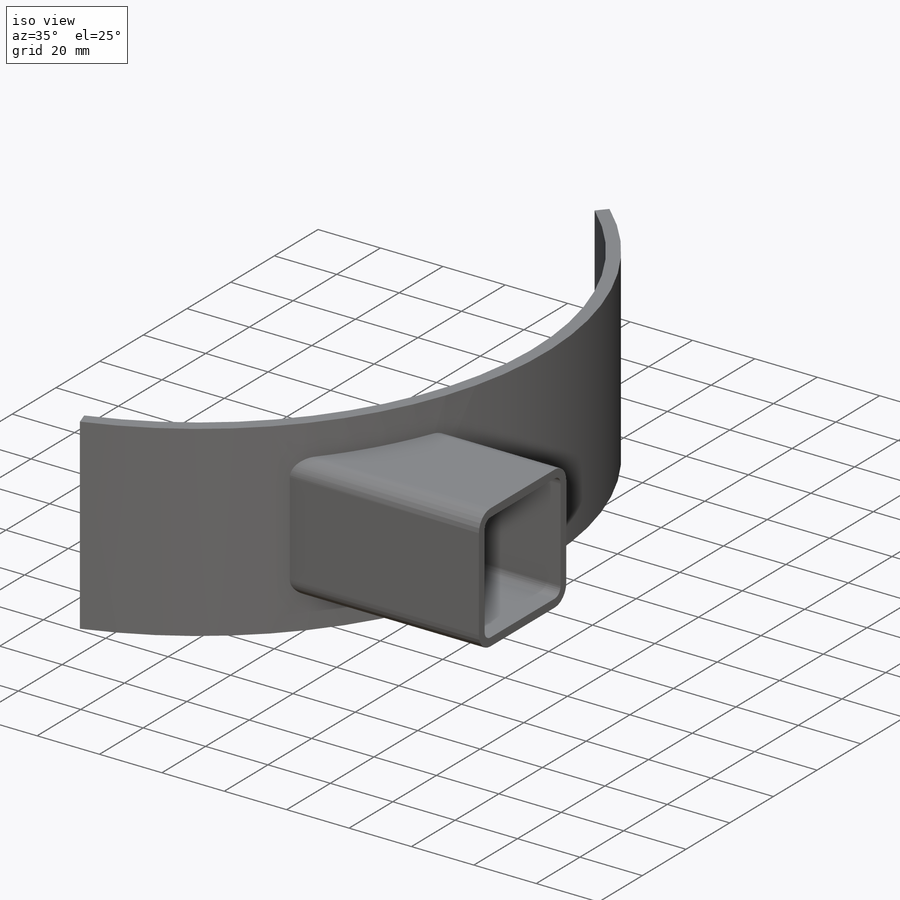
[diagram: iso view]
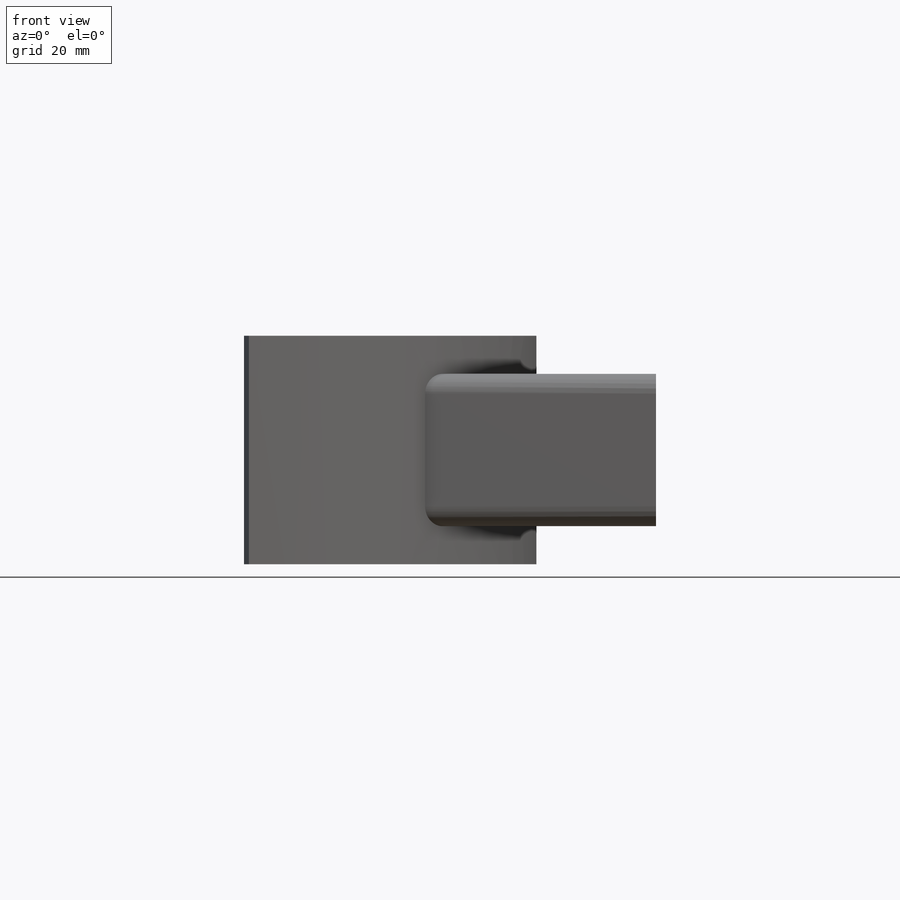
[diagram: front view]
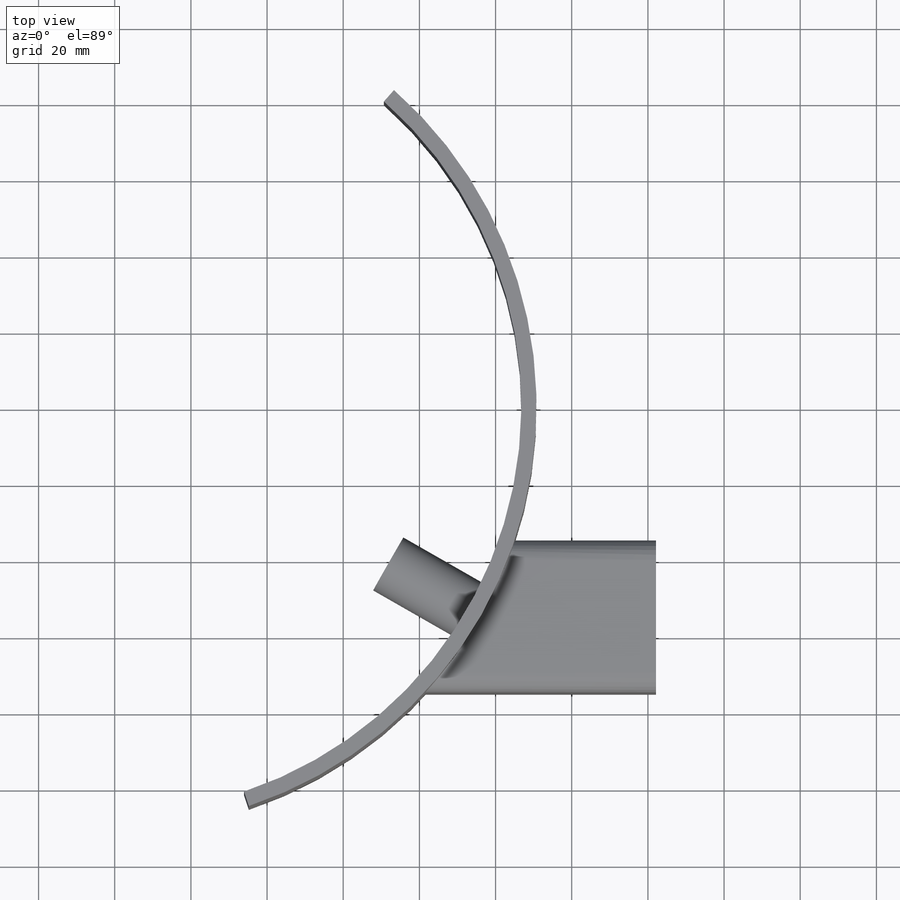
[diagram: top view]
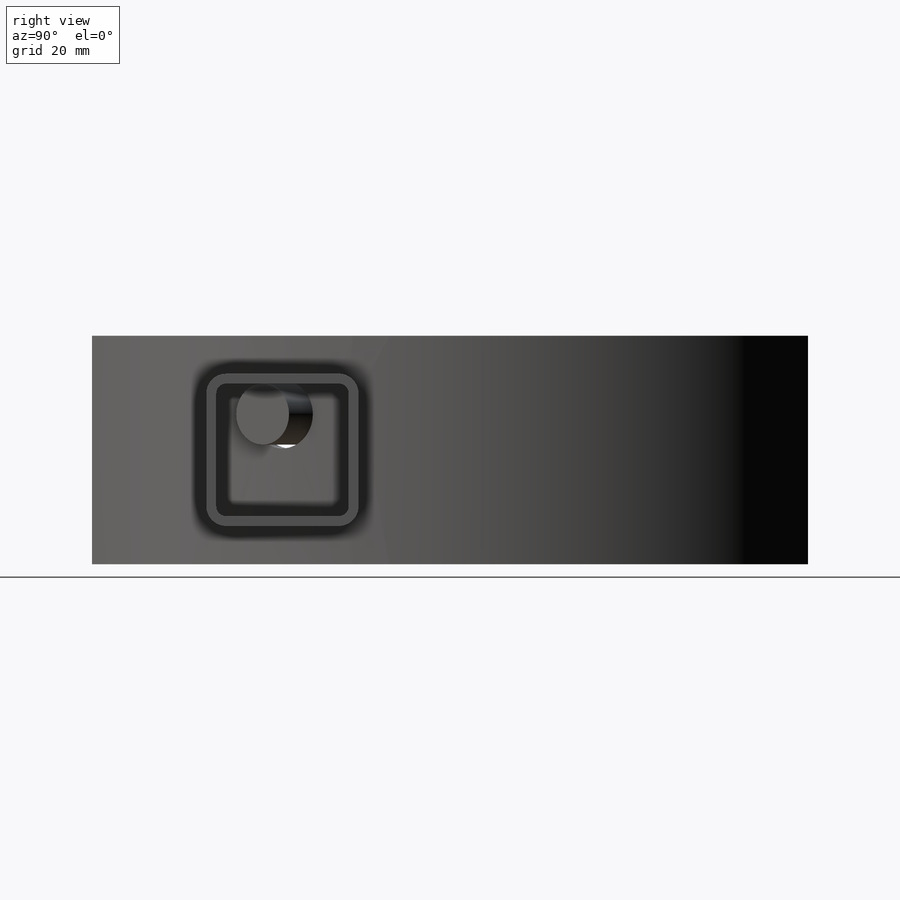
[diagram: right view]
SOLIDWORKS PART (.sldprt)
format: sldprt  version: not decoded by parser v0  size: 457,216 bytes
history: native  units: mm
features: sketch x11, plane x4, fillet x2, sheet_metal_op x2, material x1, cut_extrude x1, extrude x1, hole x1 + 3 further entries (+8 scaffold rows collapsed; 1 parser-record rows omitted)
feature tree (35):
  scaffold x8  (default folders/planes/origin — collapsed)
  material  "Allgemein"
  plane  "Vorderansicht"
  plane  "Draufsicht"
  plane  "Seitenansicht"
  "Y-Achse"
  "Z-Achse"
  sketch  "Skizze1"  dims[c1.D1=50.0mm c1.D2=130.0mm c2.D2=120.0deg]
  plane  "Ebene1"
  sketch  "Sketch1"  dims[c1.D1=6.35mm c1.D2=6.35mm c1.D3=6.35mm c1.D4=6.35mm c1.D5=6.35mm c1.D6=6.35mm c1.D7=6.35mm c1.D8=6.35mm c2.D1=6.604mm c2.D2=6.604mm c2.D3=6.604mm c2.D4=6.604mm c3.D1=5.2mm c3.Thickness=2.6mm c3.D4=12.9032mm c3.D5=12.9286mm c3.V_leg=40.0mm c3.H_leg=40.0mm c4.D4=50.3428mm c4.D5=50.8508mm c5.D4=~41.274964mm c5.D5=~41.274964mm]
  sketch  "Skizze3"
  cut_extrude  "Schnitt-Linear austragen1"  [1 undecoded]
  sketch  "Skizze4"  dims[D1=16.0mm D5=16.0mm D6=1.0mm D7=5.0mm]
  fillet  "Verrundung1"  [1 undecoded]
  fillet  "Verrundung2"  [1 undecoded]
  sketch  "Skizze5"
  extrude  "Aufsatz-Linear austragen1"  Depth=28mm
  sketch  "Skizze6"
  sheet_metal_op  "Blech1"
  sheet_metal_op  "Basis-Blech1"
  hole  "Ø18.0 (18) Durchmesser Bohrung1"  Diameter=18mm Depth=122.526595mm
  sketch  "3D-Skizze1"
  sketch  "Skizze9"  dims[hole-wizard template sketch: 59 standard entries collapsed; hole parameters kept: c18.Bohrerdurchmesser=18.0mm c18.Bohrungstiefe=~122.526595mm]
  sketch  "Skizze10"  dims[D1=0.0mm]
  "Abwicklung1"
  sketch  "Biegung-Linien1"
  sketch  "Rahmen1"
  parser-record x1  (decoder bookkeeping rows leaked as tree rows — omitted from the tree; the rows remain in map.json)
decode coverage: 7 of 18 modeling features carry decoded parameters; 3 rows unclassified (native names shown)
note: ~ marks probable driven/reference dimensions
note: 3 parameter values undecoded
summary: no parameter record found for 3 features
note: suppression state not decoded; provenance and decode notes live in map.json
